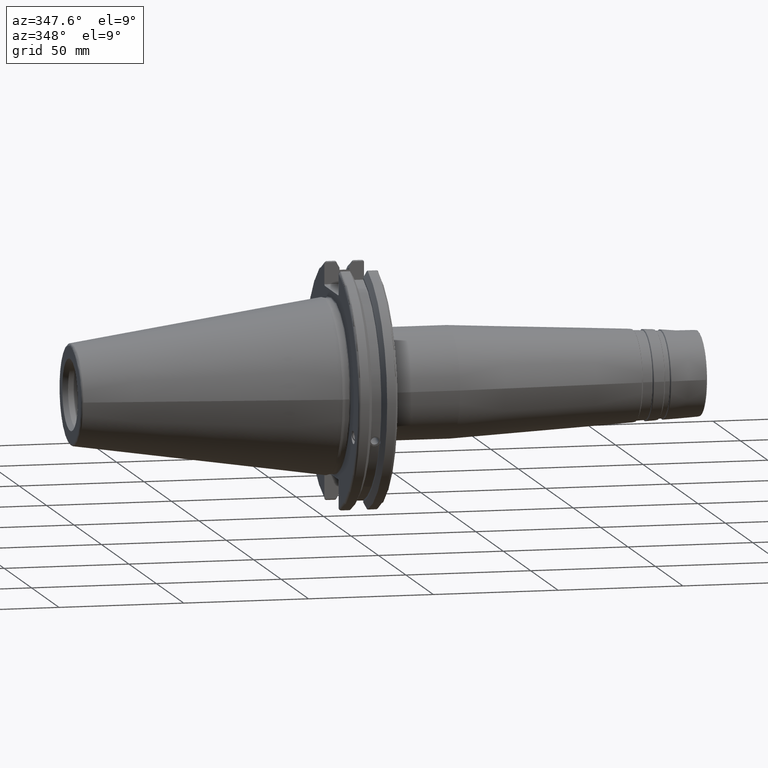
[diagram: clean part render]
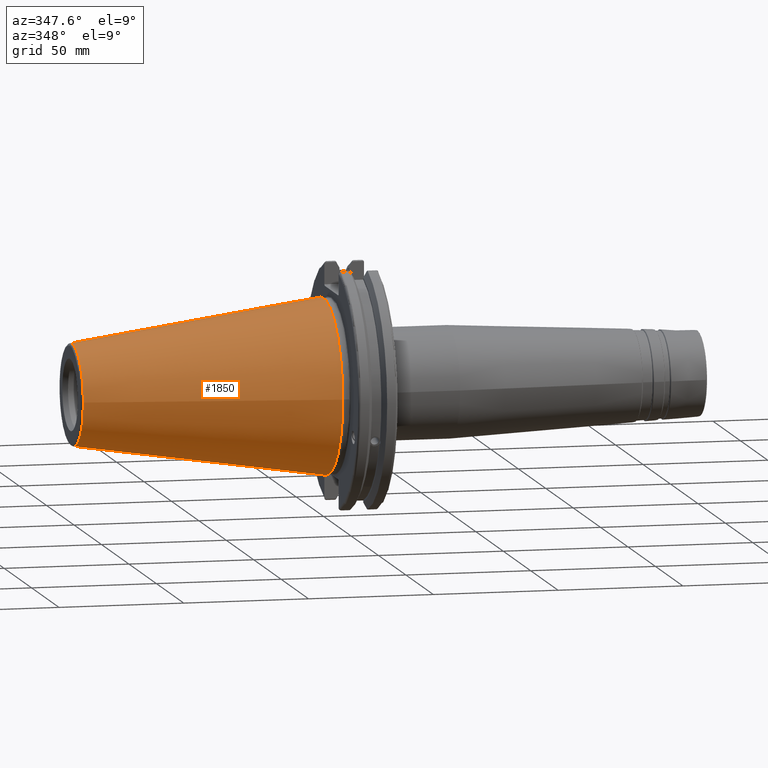
[diagram: same view with one face highlighted and labeled with its STEP entity id]
A machine part, auxiliary view. The second image highlights one B-rep face of the part: STEP entity #1850.
In plain terms, the highlighted conical surface has half-angle 8.297 deg.
Its self-contained STEP definition (entity closure, byte-faithful):
#104=CONICAL_SURFACE('',#2089,27.5166666666666,0.14481249823894);
#244=FACE_OUTER_BOUND('',#367,.T.);
#367=EDGE_LOOP('',(#1614,#1615,#1616,#1617,#1618));
#480=LINE('',#3658,#582);
#582=VECTOR('',#2592,27.5166666666666);
#706=CIRCLE('',#2083,20.233121911427);
#707=CIRCLE('',#2084,20.233121911427);
#711=CIRCLE('',#2090,34.925);
#894=VERTEX_POINT('',#3645);
#895=VERTEX_POINT('',#3646);
#898=VERTEX_POINT('',#3656);
#1149=EDGE_CURVE('',#894,#895,#706,.T.);
#1150=EDGE_CURVE('',#895,#894,#707,.T.);
#1154=EDGE_CURVE('',#898,#898,#711,.T.);
#1155=EDGE_CURVE('',#898,#895,#480,.T.);
#1614=ORIENTED_EDGE('',*,*,#1154,.F.);
#1615=ORIENTED_EDGE('',*,*,#1155,.T.);
#1616=ORIENTED_EDGE('',*,*,#1149,.F.);
#1617=ORIENTED_EDGE('',*,*,#1150,.F.);
#1618=ORIENTED_EDGE('',*,*,#1155,.F.);
#1850=ADVANCED_FACE('',(#244),#104,.T.);
#2083=AXIS2_PLACEMENT_3D('',#3647,#2576,#2577);
#2084=AXIS2_PLACEMENT_3D('',#3648,#2578,#2579);
#2089=AXIS2_PLACEMENT_3D('',#3655,#2588,#2589);
#2090=AXIS2_PLACEMENT_3D('',#3657,#2590,#2591);
#2576=DIRECTION('center_axis',(-1.,0.,0.));
#2577=DIRECTION('ref_axis',(0.,-1.,3.06161699786838E-17));
#2578=DIRECTION('center_axis',(-1.,0.,0.));
#2579=DIRECTION('ref_axis',(0.,-1.,3.06161699786838E-17));
#2588=DIRECTION('center_axis',(1.,0.,0.));
#2589=DIRECTION('ref_axis',(0.,1.,0.));
#2590=DIRECTION('center_axis',(1.,0.,0.));
#2591=DIRECTION('ref_axis',(0.,0.,-1.));
#2592=DIRECTION('',(-0.989532981063281,0.144306893071729,1.76724974695192E-17));
#3645=CARTESIAN_POINT('',(-100.744306893072,-2.47784279855872E-15,20.233121911427));
#3646=CARTESIAN_POINT('',(-100.744306893072,-20.233121911427,-2.47784279855872E-15));
#3647=CARTESIAN_POINT('Origin',(-100.744306893072,0.,-3.09730349819841E-15));
#3648=CARTESIAN_POINT('Origin',(-100.744306893072,0.,-3.09730349819841E-15));
#3655=CARTESIAN_POINT('Origin',(-50.8,0.,0.));
#3656=CARTESIAN_POINT('',(-8.88178419700125E-15,-34.925,-4.27707894602213E-15));
#3657=CARTESIAN_POINT('Origin',(0.,0.,0.));
#3658=CARTESIAN_POINT('',(-50.8,-27.5166666666666,-3.3698197756538E-15));